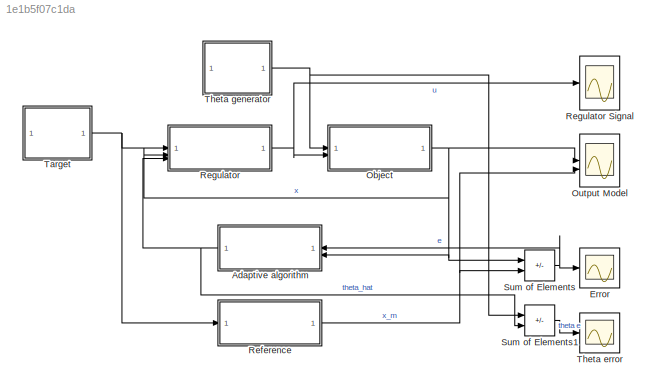
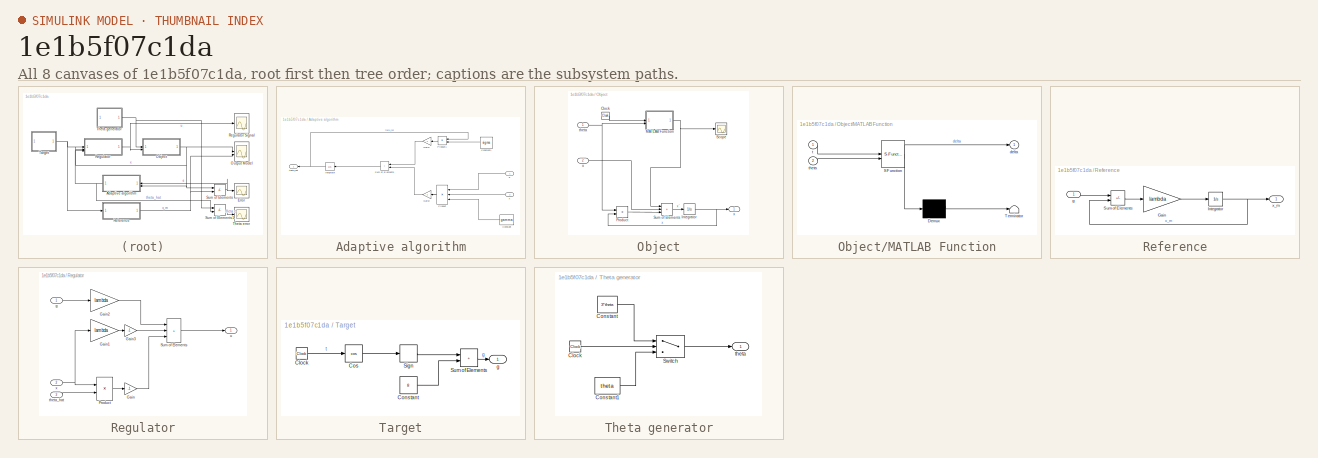
[diagram: thumbnail index - all 8 canvases of the model, root first then tree order]
MODEL slx_1e1b5f07c1da
KIND model
CONFIG AbsTol = auto
CONFIG EnableMultiTasking = off
CONFIG FixedStep = 1e-3
CONFIG MaxStep = auto
CONFIG MinStep = auto
CONFIG RelTol = 1e-3
CONFIG SampleTimeConstraint = Unconstrained
CONFIG SolverName = FixedStepAuto
CONFIG StartTime = 0.0
CONFIG StopTime = 100
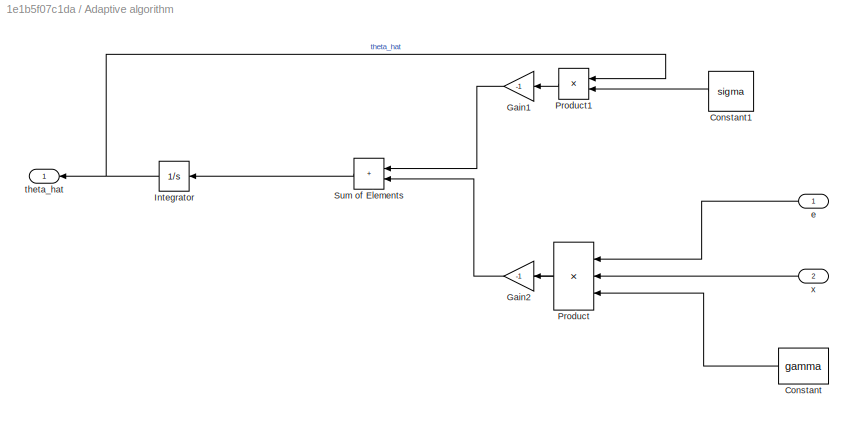
BLOCK [SubSystem] Adaptive algorithm
  NameLocation = top
BLOCK [Constant] Adaptive algorithm/Constant
  NameLocation = top
  Value = gamma
BLOCK [Constant] Adaptive algorithm/Constant1
  NameLocation = top
  Value = sigma
BLOCK [Gain] Adaptive algorithm/Gain1
  Gain = -1
  NameLocation = top
BLOCK [Gain] Adaptive algorithm/Gain2
  Gain = -1
  NameLocation = top
BLOCK [Integrator] Adaptive algorithm/Integrator
  NameLocation = top
BLOCK [Product] Adaptive algorithm/Product
  Inputs = 3
  NameLocation = top
BLOCK [Product] Adaptive algorithm/Product1
  NameLocation = top
BLOCK [Sum] Adaptive algorithm/Sum of Elements
  IconShape = rectangular
  NameLocation = top
BLOCK [Inport] Adaptive algorithm/e
  NameLocation = top
BLOCK [Outport] Adaptive algorithm/theta_hat
  NameLocation = top
BLOCK [Inport] Adaptive algorithm/x
  NameLocation = top
  Port = 2
BLOCK [Scope] Error
  Floating = off
  NumInputPorts = 1
  ScopeSpecificationString = Simulink.scopes.TimeScopeBlockCfg('CurrentConfiguration', extmgr.ConfigurationSet(extmgr.Configuration('Core','General UI',true,'FigureColor',[1 1 1]),extmgr.Configuration('Core','Source UI',true),extmgr.Configuration('Sources','WiredSimulink',true,'DataLoggingVariableName','ScopeData2'),extmgr.Configuration('Visuals','Time Domain',true,'SerializedDisplays',{struct('MinYLimReal','-3.36372','MaxYLi...<+1626ch>
BLOCK [SubSystem] Object
BLOCK [Clock] Object/Clock
BLOCK [Integrator] Object/Integrator
  InitialCondition = x_init
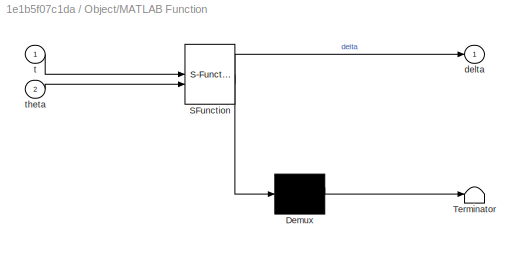
BLOCK [SubSystem] Object/MATLAB Function
  ErrorFcn = Stateflow.Translate.translate
  PermitHierarchicalResolution = ExplicitOnly
  SFBlockType = MATLAB Function
  TreatAsAtomicUnit = on
BLOCK [Demux] Object/MATLAB Function/ Demux 
  Outputs = 1
BLOCK [S-Function] Object/MATLAB Function/ SFunction 
  EnableBusSupport = on
  FunctionName = sf_sfun
  PortCounts = [2 2]
  SFcnIsStateOwnerBlock = off
  SFunctionDeploymentMode = off
  Tag = Stateflow S-Function 2
BLOCK [Terminator] Object/MATLAB Function/ Terminator 
BLOCK [Outport] Object/MATLAB Function/delta
BLOCK [Inport] Object/MATLAB Function/t
BLOCK [Inport] Object/MATLAB Function/theta
  Port = 2
BLOCK [Product] Object/Product
BLOCK [Scope] Object/Scope
  Floating = off
  NumInputPorts = 1
  ScopeSpecificationString = Simulink.scopes.TimeScopeBlockCfg('CurrentConfiguration', extmgr.ConfigurationSet(extmgr.Configuration('Core','General UI',true),extmgr.Configuration('Core','Source UI',true),extmgr.Configuration('Sources','WiredSimulink',true,'DataLoggingVariableName','ScopeData1'),extmgr.Configuration('Visuals','Time Domain',true,'SerializedDisplays',{struct('MinYLimReal','-7.20695','MaxYLimReal','-1.1039','YLab...<+1374ch>
BLOCK [Sum] Object/Sum of Elements
  IconShape = rectangular
  Inputs = +++
BLOCK [Inport] Object/theta
BLOCK [Inport] Object/u
  Port = 2
BLOCK [Outport] Object/x
BLOCK [Scope] Output Model
  Floating = off
  NumInputPorts = 2
  ScopeSpecificationString = Simulink.scopes.TimeScopeBlockCfg('CurrentConfiguration', extmgr.ConfigurationSet(extmgr.Configuration('Core','General UI',true,'FigureColor',[1 1 1]),extmgr.Configuration('Core','Source UI',true),extmgr.Configuration('Sources','WiredSimulink',true),extmgr.Configuration('Visuals','Time Domain',true,'SerializedDisplays',{struct('MinYLimReal','-0.09276','MaxYLimReal','10.83488','YLabelReal','','MinY...<+1597ch>
BLOCK [SubSystem] Reference
BLOCK [Gain] Reference/Gain
  Gain = lambda
  Multiplication = Matrix(K*u)
BLOCK [Integrator] Reference/Integrator
  InitialCondition = x_m_init
BLOCK [Sum] Reference/Sum of Elements
  IconShape = rectangular
  Inputs = +-
BLOCK [Inport] Reference/g
BLOCK [Outport] Reference/x_m
BLOCK [SubSystem] Regulator
BLOCK [Scope] Regulator Signal
  Floating = off
  NumInputPorts = 1
  ScopeSpecificationString = Simulink.scopes.TimeScopeBlockCfg('CurrentConfiguration', extmgr.ConfigurationSet(extmgr.Configuration('Core','General UI',true,'FigureColor',[1 1 1]),extmgr.Configuration('Core','Source UI',true),extmgr.Configuration('Sources','WiredSimulink',true,'DataLoggingVariableName','ScopeData1'),extmgr.Configuration('Visuals','Time Domain',true,'SerializedDisplays',{struct('MinYLimReal','-252.22493','MaxY...<+1638ch>
BLOCK [Gain] Regulator/Gain
  Gain = -1
BLOCK [Gain] Regulator/Gain1
  Gain = lambda
  Multiplication = Matrix(K*u)
BLOCK [Gain] Regulator/Gain2
  Gain = lambda
  Multiplication = Matrix(K*u)
BLOCK [Gain] Regulator/Gain3
  Gain = -1
BLOCK [Product] Regulator/Product
BLOCK [Sum] Regulator/Sum of Elements
  IconShape = rectangular
  Inputs = +++
BLOCK [Inport] Regulator/g
BLOCK [Inport] Regulator/theta_hat
  Port = 3
BLOCK [Outport] Regulator/u
BLOCK [Inport] Regulator/x
  Port = 2
BLOCK [Sum] Sum of Elements
  IconShape = rectangular
  Inputs = -+
BLOCK [Sum] Sum of Elements1
  IconShape = rectangular
  Inputs = +-
BLOCK [SubSystem] Target
BLOCK [Clock] Target/Clock
BLOCK [Constant] Target/Constant
  Value = 8
BLOCK [Trigonometry] Target/Cos
  Operator = cos
BLOCK [Signum] Target/Sign
BLOCK [Sum] Target/Sum of Elements
  IconShape = rectangular
BLOCK [Outport] Target/g
BLOCK [Scope] Theta error
  Floating = off
  NumInputPorts = 1
  ScopeSpecificationString = Simulink.scopes.TimeScopeBlockCfg('CurrentConfiguration', extmgr.ConfigurationSet(extmgr.Configuration('Core','General UI',true,'FigureColor',[1 1 1]),extmgr.Configuration('Core','Source UI',true),extmgr.Configuration('Sources','WiredSimulink',true,'DataLoggingVariableName','ScopeData1'),extmgr.Configuration('Visuals','Time Domain',true,'SerializedDisplays',{struct('MinYLimReal','-118.12899','MaxY...<+1646ch>
BLOCK [SubSystem] Theta generator
BLOCK [Clock] Theta generator/Clock
BLOCK [Constant] Theta generator/Constant
  Value = 3*theta
BLOCK [Constant] Theta generator/Constant1
  Value = theta
BLOCK [Switch] Theta generator/Switch
  Criteria = u2 > Threshold
  InputSameDT = off
  SaturateOnIntegerOverflow = off
  Threshold = 10
BLOCK [Outport] Theta generator/theta
LINE Adaptive algorithm/Constant1:1 -> Adaptive algorithm/Product1:2
LINE Adaptive algorithm/Constant:1 -> Adaptive algorithm/Product:3
LINE Adaptive algorithm/Gain1:1 -> Adaptive algorithm/Sum of Elements:1
LINE Adaptive algorithm/Gain2:1 -> Adaptive algorithm/Sum of Elements:2
NET Adaptive algorithm/Integrator:1 -> Adaptive algorithm/Product1:1, Adaptive algorithm/theta_hat:1
LINE Adaptive algorithm/Product1:1 -> Adaptive algorithm/Gain1:1
LINE Adaptive algorithm/Product:1 -> Adaptive algorithm/Gain2:1
LINE Adaptive algorithm/Sum of Elements:1 -> Adaptive algorithm/Integrator:1
LINE Adaptive algorithm/e:1 -> Adaptive algorithm/Product:1
LINE Adaptive algorithm/x:1 -> Adaptive algorithm/Product:2
NET Adaptive algorithm:1 -> Regulator:3, Sum of Elements1:2
LINE Object/Clock:1 -> Object/MATLAB Function:1
NET Object/Integrator:1 -> Object/Product:2, Object/x:1
NET Object/MATLAB Function:1 -> Object/Scope:1, Object/Sum of Elements:1
LINE Object/Product:1 -> Object/Sum of Elements:3
LINE Object/Sum of Elements:1 -> Object/Integrator:1
NET Object/theta:1 -> Object/MATLAB Function:2, Object/Product:1
LINE Object/u:1 -> Object/Sum of Elements:2
NET Object:1 -> Adaptive algorithm:2, Output Model:1, Regulator:2, Sum of Elements:1
LINE Reference/Gain:1 -> Reference/Integrator:1
NET Reference/Integrator:1 -> Reference/Sum of Elements:2, Reference/x_m:1
LINE Reference/Sum of Elements:1 -> Reference/Gain:1
LINE Reference/g:1 -> Reference/Sum of Elements:1
NET Reference:1 -> Output Model:2, Sum of Elements:2
LINE Regulator/Gain1:1 -> Regulator/Gain3:1
LINE Regulator/Gain2:1 -> Regulator/Sum of Elements:1
LINE Regulator/Gain3:1 -> Regulator/Sum of Elements:2
LINE Regulator/Gain:1 -> Regulator/Sum of Elements:3
LINE Regulator/Product:1 -> Regulator/Gain:1
LINE Regulator/Sum of Elements:1 -> Regulator/u:1
LINE Regulator/g:1 -> Regulator/Gain2:1
LINE Regulator/theta_hat:1 -> Regulator/Product:2
NET Regulator/x:1 -> Regulator/Gain1:1, Regulator/Product:1
NET Regulator:1 -> Object:2, Regulator Signal:1
LINE Sum of Elements1:1 -> Theta error:1
NET Sum of Elements:1 -> Adaptive algorithm:1, Error:1
LINE Target/Clock:1 -> Target/Cos:1
LINE Target/Constant:1 -> Target/Sum of Elements:2
LINE Target/Cos:1 -> Target/Sign:1
LINE Target/Sign:1 -> Target/Sum of Elements:1
LINE Target/Sum of Elements:1 -> Target/g:1
NET Target:1 -> Reference:1, Regulator:1
LINE Theta generator/Clock:1 -> Theta generator/Switch:2
LINE Theta generator/Constant1:1 -> Theta generator/Switch:3
LINE Theta generator/Constant:1 -> Theta generator/Switch:1
LINE Theta generator/Switch:1 -> Theta generator/theta:1
NET Theta generator:1 -> Object:1, Sum of Elements1:1
note: NET lines group one-source signal fan-out (src -> all destinations, sorted); 1:1 wires keep LINE
CHART Object/MATLAB Function states=1 transitions=1
  STATE_LABEL 'eML_blk_kernel()'
  STATE_LABEL 'SCRIPT:\nfunction delta = fcn(t, theta)\n\np1 = (1+t)^(-1/8);\np2 = 1 - theta*(1+t)^(-1/4) - 3/8*(1+t)^(-5/4);\n\ndelta = p1*p2;'
CHART  states=0 transitions=0
